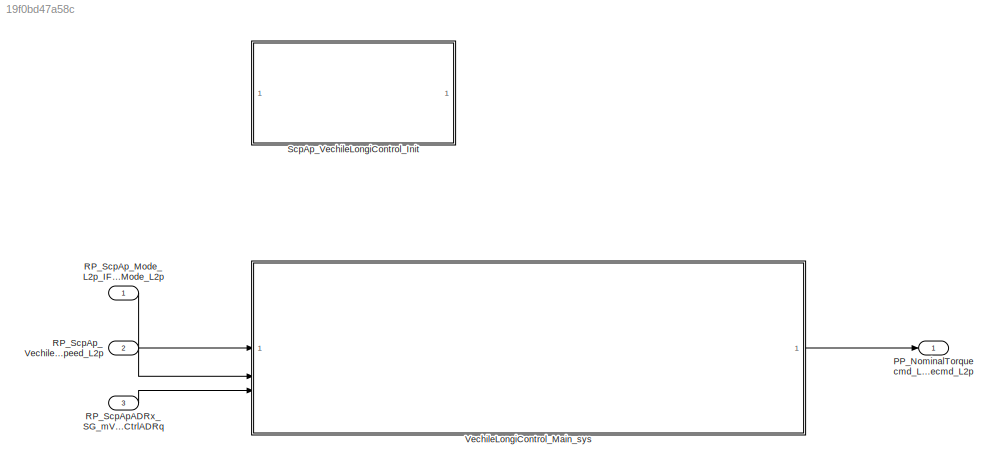
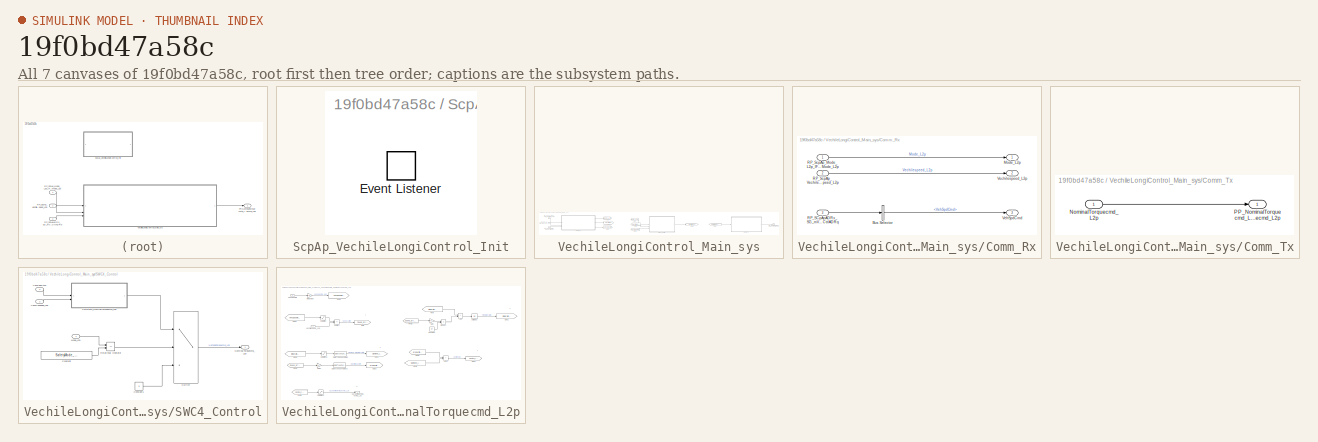
[diagram: thumbnail index - all 7 canvases of the model, root first then tree order]
MODEL slx_19f0bd47a58c
KIND model
CONFIG AbsTol = auto
CONFIG EnableMultiTasking = off
CONFIG FixedStep = 0.01
CONFIG MaxStep = auto
CONFIG MinStep = auto
CONFIG RelTol = 1e-3
CONFIG SampleTimeConstraint = Unconstrained
CONFIG SolverName = FixedStepDiscrete
CONFIG StartTime = 0.0
CONFIG StopTime = 10.0
WORKSPACE source: mxarray member
WORKSPACE Integrator_State: Simulink.Signal (value not decoded)
WORKSPACE ScpAp_Cal_NominalTorquecmd_L2p: Simulink.Signal (value not decoded)
WORKSPACE ScpAp_Clamped_Integrator_State: Simulink.Signal (value not decoded)
WORKSPACE ScpAp_Vech_NominalTorquecmd_L2p: Simulink.Signal (value not decoded)
WORKSPACE ScpAp_VechileLong_VehSpdCmd_Kph: Simulink.Signal (value not decoded)
WORKSPACE ScpAp_VechileLongiC_Control_raw: Simulink.Signal (value not decoded)
WORKSPACE ScpAp_VechileLongiC_Speed_Error: Simulink.Signal (value not decoded)
WORKSPACE ScpAp_Vechile_proportional_term: Simulink.Signal (value not decoded)
BLOCK [Outport] PP_NominalTorquecmd_L2p_IF_NominalTorquecmd_L2p
  OutDataTypeStr = int16
  PortDimensions = 1
  SamplingMode = Sample based
  SignalType = real
BLOCK [Inport] RP_ScpApADRx_SG_mVehCtrlADRq_SG_mVehCtrlADRq
  BusOutputAsStruct = on
  OutDataTypeStr = Bus: SG_mVehCtrlADRq_IDT_E2E
  Port = 3
  PortDimensions = 1
  SamplingMode = Sample based
BLOCK [Inport] RP_ScpAp_Mode_L2p_IF_SafetyMode_L2p
  OutDataTypeStr = Enum: SafetyMode_L2p_IDT
  PortDimensions = 1
  SamplingMode = Sample based
  SignalType = real
BLOCK [Inport] RP_ScpAp_Vechilespeed_L2p_IF_Vechilespeed_L2p
  OutDataTypeStr = uint16
  Port = 2
  PortDimensions = 1
  SamplingMode = Sample based
  SignalType = real
BLOCK [SubSystem] ScpAp_VechileLongiControl_Init
BLOCK [EventListener] ScpAp_VechileLongiControl_Init/Event Listener
  EventName = reset
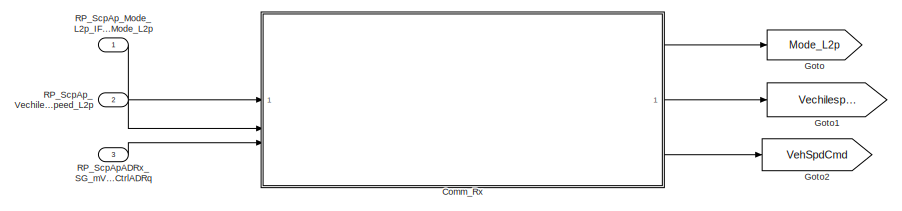
[diagram: VechileLongiControl_Main_sys - part 1/3, left side, full height]
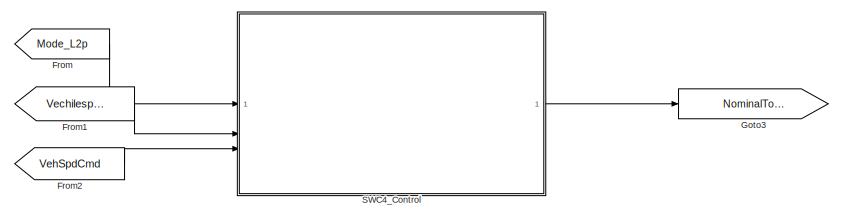
[diagram: VechileLongiControl_Main_sys - part 2/3, center side, full height]
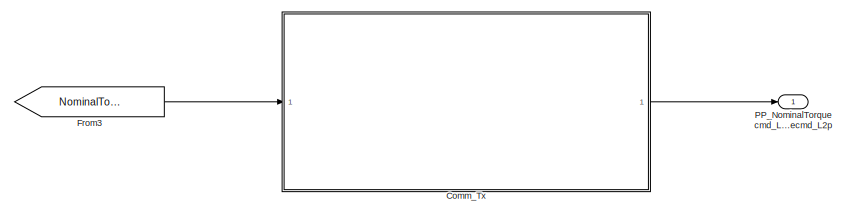
[diagram: VechileLongiControl_Main_sys - part 3/3, right side, full height]
BLOCK [SubSystem] VechileLongiControl_Main_sys
  SystemSampleTime = 0.01
  TreatAsAtomicUnit = on
BLOCK [SubSystem] VechileLongiControl_Main_sys/Comm_Rx
  TreatAsAtomicUnit = on
BLOCK [BusSelector] VechileLongiControl_Main_sys/Comm_Rx/Bus Selector
  OutputSignals = VehSpdCmd
BLOCK [Outport] VechileLongiControl_Main_sys/Comm_Rx/Mode_L2p
  OutDataTypeStr = Enum: SafetyMode_L2p_IDT
BLOCK [Inport] VechileLongiControl_Main_sys/Comm_Rx/RP_SCpApADRx_SG_mVehCtrlADRq_SG_mVehCtrlADRq
  Port = 3
BLOCK [Inport] VechileLongiControl_Main_sys/Comm_Rx/RP_ScpAp_Mode_L2p_IF_SafetyMode_L2p
  OutDataTypeStr = Enum: SafetyMode_L2p_IDT
BLOCK [Inport] VechileLongiControl_Main_sys/Comm_Rx/RP_ScpAp_Vechilespeed_L2p_IF_Vechilespeed_L2p
  Port = 2
BLOCK [Outport] VechileLongiControl_Main_sys/Comm_Rx/Vechilespeed_L2p
  Port = 2
BLOCK [Outport] VechileLongiControl_Main_sys/Comm_Rx/VehSpdCmd
  Port = 3
BLOCK [SubSystem] VechileLongiControl_Main_sys/Comm_Tx
  TreatAsAtomicUnit = on
BLOCK [Inport] VechileLongiControl_Main_sys/Comm_Tx/NominalTorquecmd_L2p
BLOCK [Outport] VechileLongiControl_Main_sys/Comm_Tx/PP_NominalTorquecmd_L2p_IF_NominalTorquecmd_L2p
BLOCK [From] VechileLongiControl_Main_sys/From
  GotoTag = Mode_L2p
BLOCK [From] VechileLongiControl_Main_sys/From1
  GotoTag = Vechilespeed_L2p
BLOCK [From] VechileLongiControl_Main_sys/From2
  GotoTag = VehSpdCmd
BLOCK [From] VechileLongiControl_Main_sys/From3
  GotoTag = NominalTorquecmd_L2p
BLOCK [Goto] VechileLongiControl_Main_sys/Goto
  GotoTag = Mode_L2p
BLOCK [Goto] VechileLongiControl_Main_sys/Goto1
  GotoTag = Vechilespeed_L2p
BLOCK [Goto] VechileLongiControl_Main_sys/Goto2
  GotoTag = VehSpdCmd
BLOCK [Goto] VechileLongiControl_Main_sys/Goto3
  GotoTag = NominalTorquecmd_L2p
BLOCK [Outport] VechileLongiControl_Main_sys/PP_NominalTorquecmd_L2p_IF_NominalTorquecmd_L2p
BLOCK [Inport] VechileLongiControl_Main_sys/RP_ScpApADRx_SG_mVehCtrlADRq_SG_mVehCtrlADRq
  Port = 3
BLOCK [Inport] VechileLongiControl_Main_sys/RP_ScpAp_Mode_L2p_IF_SafetyMode_L2p
BLOCK [Inport] VechileLongiControl_Main_sys/RP_ScpAp_Vechilespeed_L2p_IF_Vechilespeed_L2p
  Port = 2
BLOCK [SubSystem] VechileLongiControl_Main_sys/SWC4_Control
  TreatAsAtomicUnit = on
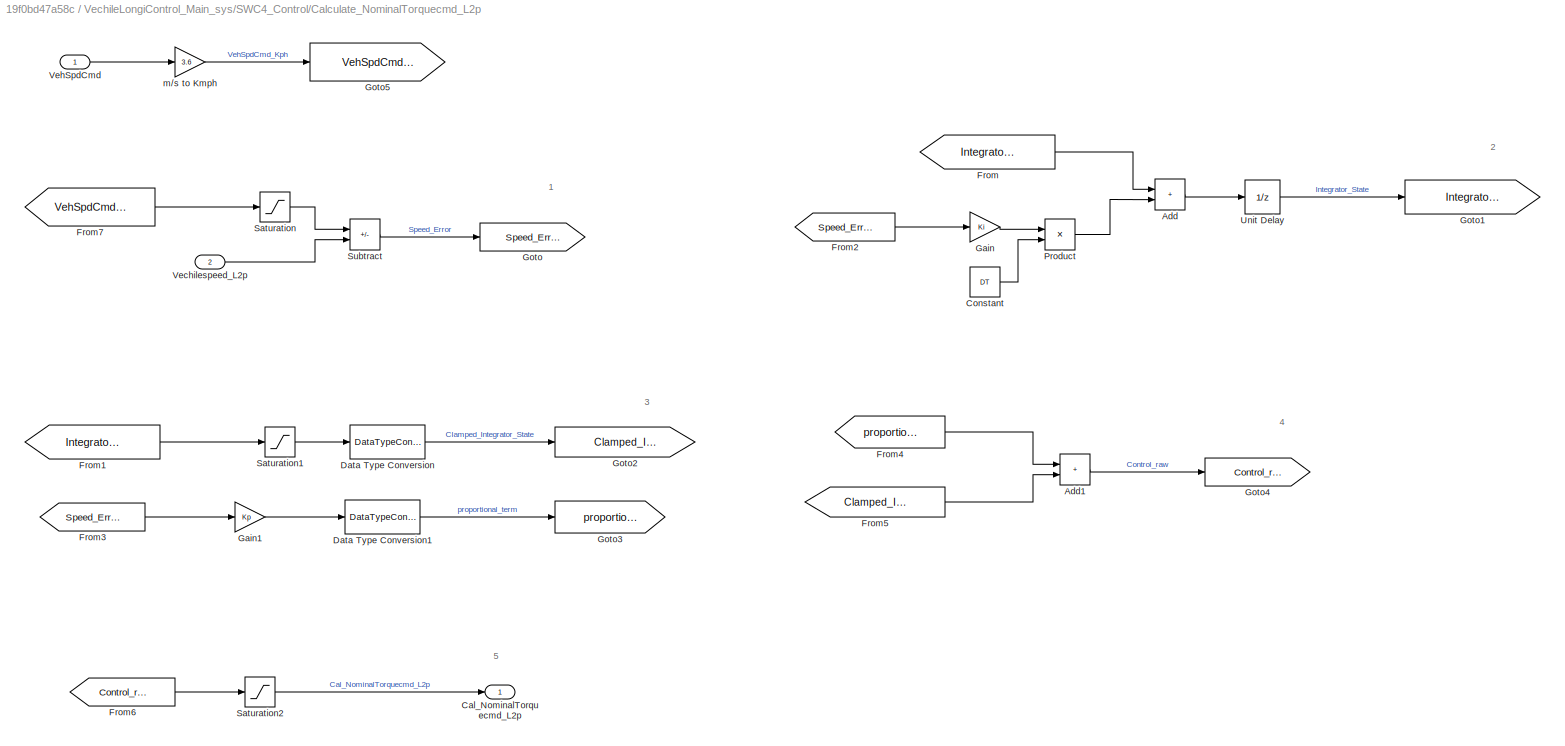
BLOCK [SubSystem] VechileLongiControl_Main_sys/SWC4_Control/Calculate_NominalTorquecmd_L2p
  TreatAsAtomicUnit = on
BLOCK [Sum] VechileLongiControl_Main_sys/SWC4_Control/Calculate_NominalTorquecmd_L2p/Add
  IconShape = rectangular
BLOCK [Sum] VechileLongiControl_Main_sys/SWC4_Control/Calculate_NominalTorquecmd_L2p/Add1
  IconShape = rectangular
  OutDataTypeStr = int16
BLOCK [Outport] VechileLongiControl_Main_sys/SWC4_Control/Calculate_NominalTorquecmd_L2p/Cal_NominalTorquecmd_L2p
BLOCK [Constant] VechileLongiControl_Main_sys/SWC4_Control/Calculate_NominalTorquecmd_L2p/Constant
  Value = DT
BLOCK [DataTypeConversion] VechileLongiControl_Main_sys/SWC4_Control/Calculate_NominalTorquecmd_L2p/Data Type Conversion
  OutDataTypeStr = int16
  RndMeth = Floor
  SaturateOnIntegerOverflow = off
BLOCK [DataTypeConversion] VechileLongiControl_Main_sys/SWC4_Control/Calculate_NominalTorquecmd_L2p/Data Type Conversion1
  OutDataTypeStr = int16
  RndMeth = Floor
  SaturateOnIntegerOverflow = off
BLOCK [From] VechileLongiControl_Main_sys/SWC4_Control/Calculate_NominalTorquecmd_L2p/From
  GotoTag = Integrator_State
BLOCK [From] VechileLongiControl_Main_sys/SWC4_Control/Calculate_NominalTorquecmd_L2p/From1
  GotoTag = Integrator_State
BLOCK [From] VechileLongiControl_Main_sys/SWC4_Control/Calculate_NominalTorquecmd_L2p/From2
  GotoTag = Speed_Error
BLOCK [From] VechileLongiControl_Main_sys/SWC4_Control/Calculate_NominalTorquecmd_L2p/From3
  GotoTag = Speed_Error
BLOCK [From] VechileLongiControl_Main_sys/SWC4_Control/Calculate_NominalTorquecmd_L2p/From4
  GotoTag = proportional_term
BLOCK [From] VechileLongiControl_Main_sys/SWC4_Control/Calculate_NominalTorquecmd_L2p/From5
  GotoTag = Clamped_Integrator_State
BLOCK [From] VechileLongiControl_Main_sys/SWC4_Control/Calculate_NominalTorquecmd_L2p/From6
  GotoTag = Control_raw
BLOCK [From] VechileLongiControl_Main_sys/SWC4_Control/Calculate_NominalTorquecmd_L2p/From7
  GotoTag = VehSpdCmd_Kph
BLOCK [Gain] VechileLongiControl_Main_sys/SWC4_Control/Calculate_NominalTorquecmd_L2p/Gain
  Gain = Ki
BLOCK [Gain] VechileLongiControl_Main_sys/SWC4_Control/Calculate_NominalTorquecmd_L2p/Gain1
  Gain = Kp
BLOCK [Goto] VechileLongiControl_Main_sys/SWC4_Control/Calculate_NominalTorquecmd_L2p/Goto
  GotoTag = Speed_Error
BLOCK [Goto] VechileLongiControl_Main_sys/SWC4_Control/Calculate_NominalTorquecmd_L2p/Goto1
  GotoTag = Integrator_State
BLOCK [Goto] VechileLongiControl_Main_sys/SWC4_Control/Calculate_NominalTorquecmd_L2p/Goto2
  GotoTag = Clamped_Integrator_State
BLOCK [Goto] VechileLongiControl_Main_sys/SWC4_Control/Calculate_NominalTorquecmd_L2p/Goto3
  GotoTag = proportional_term
BLOCK [Goto] VechileLongiControl_Main_sys/SWC4_Control/Calculate_NominalTorquecmd_L2p/Goto4
  GotoTag = Control_raw
BLOCK [Goto] VechileLongiControl_Main_sys/SWC4_Control/Calculate_NominalTorquecmd_L2p/Goto5
  GotoTag = VehSpdCmd_Kph
BLOCK [Product] VechileLongiControl_Main_sys/SWC4_Control/Calculate_NominalTorquecmd_L2p/Product
BLOCK [Saturate] VechileLongiControl_Main_sys/SWC4_Control/Calculate_NominalTorquecmd_L2p/Saturation
  LowerLimit = 0
  UpperLimit = 32
BLOCK [Saturate] VechileLongiControl_Main_sys/SWC4_Control/Calculate_NominalTorquecmd_L2p/Saturation1
  LowerLimit = -30
  UpperLimit = 30
BLOCK [Saturate] VechileLongiControl_Main_sys/SWC4_Control/Calculate_NominalTorquecmd_L2p/Saturation2
  LowerLimit = -70
  UpperLimit = 120
BLOCK [Sum] VechileLongiControl_Main_sys/SWC4_Control/Calculate_NominalTorquecmd_L2p/Subtract
  IconShape = rectangular
  Inputs = +-
BLOCK [UnitDelay] VechileLongiControl_Main_sys/SWC4_Control/Calculate_NominalTorquecmd_L2p/Unit Delay
  HasFrameUpgradeWarning = on
  SampleTime = -1
BLOCK [Inport] VechileLongiControl_Main_sys/SWC4_Control/Calculate_NominalTorquecmd_L2p/Vechilespeed_L2p
  Port = 2
BLOCK [Inport] VechileLongiControl_Main_sys/SWC4_Control/Calculate_NominalTorquecmd_L2p/VehSpdCmd
BLOCK [Gain] VechileLongiControl_Main_sys/SWC4_Control/Calculate_NominalTorquecmd_L2p/m//s to Kmph
  Gain = 3.6
BLOCK [Constant] VechileLongiControl_Main_sys/SWC4_Control/Constant
  OutDataTypeStr = Enum: SafetyMode_L2p_IDT
  Value = SafetyMode_L2p_IDT.AUTONOMOUS
BLOCK [Constant] VechileLongiControl_Main_sys/SWC4_Control/Constant1
  OutDataTypeStr = int16
  Value = 0
BLOCK [Inport] VechileLongiControl_Main_sys/SWC4_Control/Mode_L2p
  OutDataTypeStr = Enum: SafetyMode_L2p_IDT
BLOCK [Outport] VechileLongiControl_Main_sys/SWC4_Control/NominalTorquecmd_L2p
BLOCK [RelationalOperator] VechileLongiControl_Main_sys/SWC4_Control/Relational Operator
  InputSameDT = off
  Operator = ==
  OutDataTypeStr = boolean
  RndMeth = Simplest
BLOCK [Switch] VechileLongiControl_Main_sys/SWC4_Control/Switch
  Criteria = u2 > Threshold
  InputSameDT = off
  SaturateOnIntegerOverflow = off
BLOCK [Inport] VechileLongiControl_Main_sys/SWC4_Control/Vechilespeed_L2p
  Port = 2
BLOCK [Inport] VechileLongiControl_Main_sys/SWC4_Control/VehSpdCmd
  Port = 3
ANNOTATION VechileLongiControl_Main_sys/SWC4_Control/Calculate_NominalTorquecmd_L2p: 1
ANNOTATION VechileLongiControl_Main_sys/SWC4_Control/Calculate_NominalTorquecmd_L2p: 2
ANNOTATION VechileLongiControl_Main_sys/SWC4_Control/Calculate_NominalTorquecmd_L2p: 3
ANNOTATION VechileLongiControl_Main_sys/SWC4_Control/Calculate_NominalTorquecmd_L2p: 4
ANNOTATION VechileLongiControl_Main_sys/SWC4_Control/Calculate_NominalTorquecmd_L2p: 5
LINE RP_ScpApADRx_SG_mVehCtrlADRq_SG_mVehCtrlADRq:1 -> VechileLongiControl_Main_sys:3
LINE RP_ScpAp_Mode_L2p_IF_SafetyMode_L2p:1 -> VechileLongiControl_Main_sys:1
LINE RP_ScpAp_Vechilespeed_L2p_IF_Vechilespeed_L2p:1 -> VechileLongiControl_Main_sys:2
LINE VechileLongiControl_Main_sys/Comm_Rx/Bus Selector:1 -> VechileLongiControl_Main_sys/Comm_Rx/VehSpdCmd:1
LINE VechileLongiControl_Main_sys/Comm_Rx/RP_SCpApADRx_SG_mVehCtrlADRq_SG_mVehCtrlADRq:1 -> VechileLongiControl_Main_sys/Comm_Rx/Bus Selector:1
LINE VechileLongiControl_Main_sys/Comm_Rx/RP_ScpAp_Mode_L2p_IF_SafetyMode_L2p:1 -> VechileLongiControl_Main_sys/Comm_Rx/Mode_L2p:1
LINE VechileLongiControl_Main_sys/Comm_Rx/RP_ScpAp_Vechilespeed_L2p_IF_Vechilespeed_L2p:1 -> VechileLongiControl_Main_sys/Comm_Rx/Vechilespeed_L2p:1
LINE VechileLongiControl_Main_sys/Comm_Rx:1 -> VechileLongiControl_Main_sys/Goto:1
LINE VechileLongiControl_Main_sys/Comm_Rx:2 -> VechileLongiControl_Main_sys/Goto1:1
LINE VechileLongiControl_Main_sys/Comm_Rx:3 -> VechileLongiControl_Main_sys/Goto2:1
LINE VechileLongiControl_Main_sys/Comm_Tx/NominalTorquecmd_L2p:1 -> VechileLongiControl_Main_sys/Comm_Tx/PP_NominalTorquecmd_L2p_IF_NominalTorquecmd_L2p:1
LINE VechileLongiControl_Main_sys/Comm_Tx:1 -> VechileLongiControl_Main_sys/PP_NominalTorquecmd_L2p_IF_NominalTorquecmd_L2p:1
LINE VechileLongiControl_Main_sys/From1:1 -> VechileLongiControl_Main_sys/SWC4_Control:2
LINE VechileLongiControl_Main_sys/From2:1 -> VechileLongiControl_Main_sys/SWC4_Control:3
LINE VechileLongiControl_Main_sys/From3:1 -> VechileLongiControl_Main_sys/Comm_Tx:1
LINE VechileLongiControl_Main_sys/From:1 -> VechileLongiControl_Main_sys/SWC4_Control:1
LINE VechileLongiControl_Main_sys/RP_ScpApADRx_SG_mVehCtrlADRq_SG_mVehCtrlADRq:1 -> VechileLongiControl_Main_sys/Comm_Rx:3
LINE VechileLongiControl_Main_sys/RP_ScpAp_Mode_L2p_IF_SafetyMode_L2p:1 -> VechileLongiControl_Main_sys/Comm_Rx:1
LINE VechileLongiControl_Main_sys/RP_ScpAp_Vechilespeed_L2p_IF_Vechilespeed_L2p:1 -> VechileLongiControl_Main_sys/Comm_Rx:2
LINE VechileLongiControl_Main_sys/SWC4_Control/Calculate_NominalTorquecmd_L2p/Add1:1 -> VechileLongiControl_Main_sys/SWC4_Control/Calculate_NominalTorquecmd_L2p/Goto4:1
LINE VechileLongiControl_Main_sys/SWC4_Control/Calculate_NominalTorquecmd_L2p/Add:1 -> VechileLongiControl_Main_sys/SWC4_Control/Calculate_NominalTorquecmd_L2p/Unit Delay:1
LINE VechileLongiControl_Main_sys/SWC4_Control/Calculate_NominalTorquecmd_L2p/Constant:1 -> VechileLongiControl_Main_sys/SWC4_Control/Calculate_NominalTorquecmd_L2p/Product:2
LINE VechileLongiControl_Main_sys/SWC4_Control/Calculate_NominalTorquecmd_L2p/Data Type Conversion1:1 -> VechileLongiControl_Main_sys/SWC4_Control/Calculate_NominalTorquecmd_L2p/Goto3:1
LINE VechileLongiControl_Main_sys/SWC4_Control/Calculate_NominalTorquecmd_L2p/Data Type Conversion:1 -> VechileLongiControl_Main_sys/SWC4_Control/Calculate_NominalTorquecmd_L2p/Goto2:1
LINE VechileLongiControl_Main_sys/SWC4_Control/Calculate_NominalTorquecmd_L2p/From1:1 -> VechileLongiControl_Main_sys/SWC4_Control/Calculate_NominalTorquecmd_L2p/Saturation1:1
LINE VechileLongiControl_Main_sys/SWC4_Control/Calculate_NominalTorquecmd_L2p/From2:1 -> VechileLongiControl_Main_sys/SWC4_Control/Calculate_NominalTorquecmd_L2p/Gain:1
LINE VechileLongiControl_Main_sys/SWC4_Control/Calculate_NominalTorquecmd_L2p/From3:1 -> VechileLongiControl_Main_sys/SWC4_Control/Calculate_NominalTorquecmd_L2p/Gain1:1
LINE VechileLongiControl_Main_sys/SWC4_Control/Calculate_NominalTorquecmd_L2p/From4:1 -> VechileLongiControl_Main_sys/SWC4_Control/Calculate_NominalTorquecmd_L2p/Add1:1
LINE VechileLongiControl_Main_sys/SWC4_Control/Calculate_NominalTorquecmd_L2p/From5:1 -> VechileLongiControl_Main_sys/SWC4_Control/Calculate_NominalTorquecmd_L2p/Add1:2
LINE VechileLongiControl_Main_sys/SWC4_Control/Calculate_NominalTorquecmd_L2p/From6:1 -> VechileLongiControl_Main_sys/SWC4_Control/Calculate_NominalTorquecmd_L2p/Saturation2:1
LINE VechileLongiControl_Main_sys/SWC4_Control/Calculate_NominalTorquecmd_L2p/From7:1 -> VechileLongiControl_Main_sys/SWC4_Control/Calculate_NominalTorquecmd_L2p/Saturation:1
LINE VechileLongiControl_Main_sys/SWC4_Control/Calculate_NominalTorquecmd_L2p/From:1 -> VechileLongiControl_Main_sys/SWC4_Control/Calculate_NominalTorquecmd_L2p/Add:1
LINE VechileLongiControl_Main_sys/SWC4_Control/Calculate_NominalTorquecmd_L2p/Gain1:1 -> VechileLongiControl_Main_sys/SWC4_Control/Calculate_NominalTorquecmd_L2p/Data Type Conversion1:1
LINE VechileLongiControl_Main_sys/SWC4_Control/Calculate_NominalTorquecmd_L2p/Gain:1 -> VechileLongiControl_Main_sys/SWC4_Control/Calculate_NominalTorquecmd_L2p/Product:1
LINE VechileLongiControl_Main_sys/SWC4_Control/Calculate_NominalTorquecmd_L2p/Product:1 -> VechileLongiControl_Main_sys/SWC4_Control/Calculate_NominalTorquecmd_L2p/Add:2
LINE VechileLongiControl_Main_sys/SWC4_Control/Calculate_NominalTorquecmd_L2p/Saturation1:1 -> VechileLongiControl_Main_sys/SWC4_Control/Calculate_NominalTorquecmd_L2p/Data Type Conversion:1
LINE VechileLongiControl_Main_sys/SWC4_Control/Calculate_NominalTorquecmd_L2p/Saturation2:1 -> VechileLongiControl_Main_sys/SWC4_Control/Calculate_NominalTorquecmd_L2p/Cal_NominalTorquecmd_L2p:1
LINE VechileLongiControl_Main_sys/SWC4_Control/Calculate_NominalTorquecmd_L2p/Saturation:1 -> VechileLongiControl_Main_sys/SWC4_Control/Calculate_NominalTorquecmd_L2p/Subtract:1
LINE VechileLongiControl_Main_sys/SWC4_Control/Calculate_NominalTorquecmd_L2p/Subtract:1 -> VechileLongiControl_Main_sys/SWC4_Control/Calculate_NominalTorquecmd_L2p/Goto:1
LINE VechileLongiControl_Main_sys/SWC4_Control/Calculate_NominalTorquecmd_L2p/Unit Delay:1 -> VechileLongiControl_Main_sys/SWC4_Control/Calculate_NominalTorquecmd_L2p/Goto1:1
LINE VechileLongiControl_Main_sys/SWC4_Control/Calculate_NominalTorquecmd_L2p/Vechilespeed_L2p:1 -> VechileLongiControl_Main_sys/SWC4_Control/Calculate_NominalTorquecmd_L2p/Subtract:2
LINE VechileLongiControl_Main_sys/SWC4_Control/Calculate_NominalTorquecmd_L2p/VehSpdCmd:1 -> VechileLongiControl_Main_sys/SWC4_Control/Calculate_NominalTorquecmd_L2p/m//s to Kmph:1
LINE VechileLongiControl_Main_sys/SWC4_Control/Calculate_NominalTorquecmd_L2p/m//s to Kmph:1 -> VechileLongiControl_Main_sys/SWC4_Control/Calculate_NominalTorquecmd_L2p/Goto5:1
LINE VechileLongiControl_Main_sys/SWC4_Control/Calculate_NominalTorquecmd_L2p:1 -> VechileLongiControl_Main_sys/SWC4_Control/Switch:1
LINE VechileLongiControl_Main_sys/SWC4_Control/Constant1:1 -> VechileLongiControl_Main_sys/SWC4_Control/Switch:3
LINE VechileLongiControl_Main_sys/SWC4_Control/Constant:1 -> VechileLongiControl_Main_sys/SWC4_Control/Relational Operator:2
LINE VechileLongiControl_Main_sys/SWC4_Control/Mode_L2p:1 -> VechileLongiControl_Main_sys/SWC4_Control/Relational Operator:1
LINE VechileLongiControl_Main_sys/SWC4_Control/Relational Operator:1 -> VechileLongiControl_Main_sys/SWC4_Control/Switch:2
LINE VechileLongiControl_Main_sys/SWC4_Control/Switch:1 -> VechileLongiControl_Main_sys/SWC4_Control/NominalTorquecmd_L2p:1
LINE VechileLongiControl_Main_sys/SWC4_Control/Vechilespeed_L2p:1 -> VechileLongiControl_Main_sys/SWC4_Control/Calculate_NominalTorquecmd_L2p:2
LINE VechileLongiControl_Main_sys/SWC4_Control/VehSpdCmd:1 -> VechileLongiControl_Main_sys/SWC4_Control/Calculate_NominalTorquecmd_L2p:1
LINE VechileLongiControl_Main_sys/SWC4_Control:1 -> VechileLongiControl_Main_sys/Goto3:1
LINE VechileLongiControl_Main_sys:1 -> PP_NominalTorquecmd_L2p_IF_NominalTorquecmd_L2p:1
